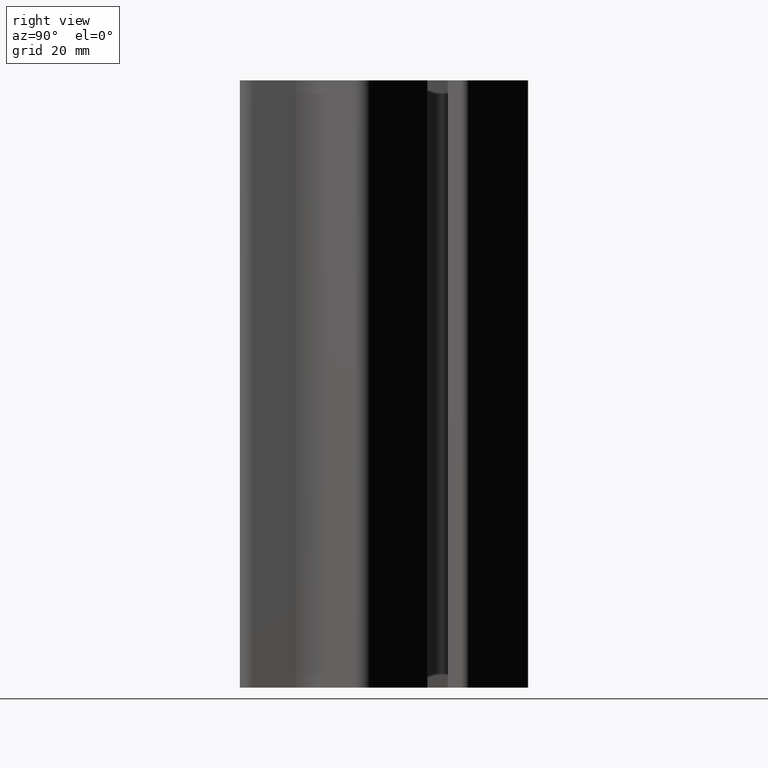
[diagram: clean part render]
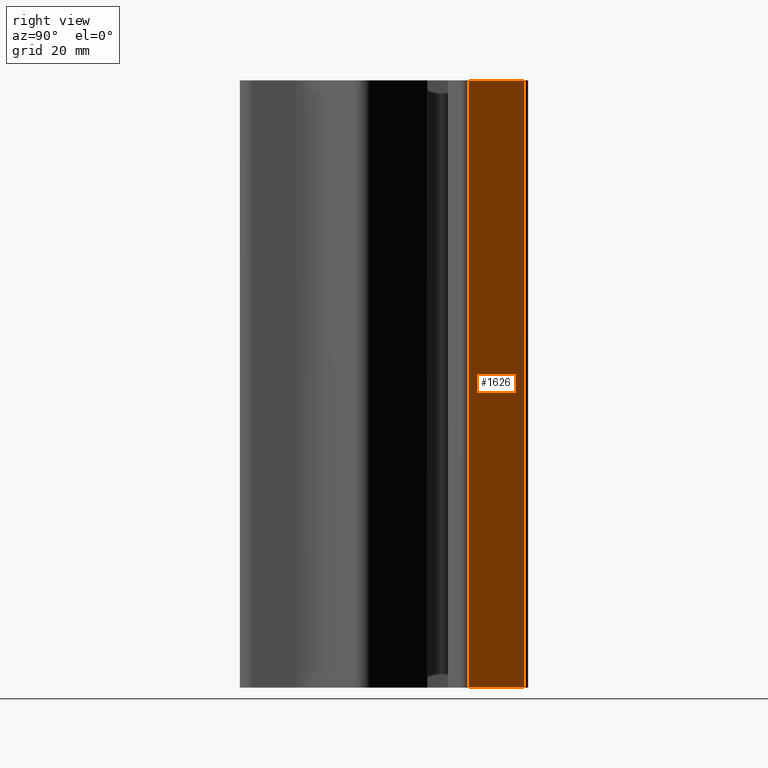
[diagram: same view with one face highlighted and labeled with its STEP entity id]
A machine part, right view. The second image highlights one B-rep face of the part: STEP entity #1626.
In plain terms, the highlighted planar face has unit normal (0.7071, 0.7071, 0).
Its self-contained STEP definition (entity closure, byte-faithful):
#148=FACE_OUTER_BOUND('',#234,.T.);
#234=EDGE_LOOP('',(#1080,#1081,#1082,#1083));
#327=LINE('',#2397,#494);
#328=LINE('',#2399,#495);
#329=LINE('',#2401,#496);
#330=LINE('',#2402,#497);
#494=VECTOR('',#1888,12.9962386445794);
#495=VECTOR('',#1889,100.);
#496=VECTOR('',#1890,12.9962386445794);
#497=VECTOR('',#1891,100.);
#661=VERTEX_POINT('',#2395);
#662=VERTEX_POINT('',#2396);
#663=VERTEX_POINT('',#2398);
#664=VERTEX_POINT('',#2400);
#829=EDGE_CURVE('',#661,#662,#327,.T.);
#830=EDGE_CURVE('',#662,#663,#328,.T.);
#831=EDGE_CURVE('',#664,#663,#329,.T.);
#832=EDGE_CURVE('',#661,#664,#330,.T.);
#1080=ORIENTED_EDGE('',*,*,#829,.T.);
#1081=ORIENTED_EDGE('',*,*,#830,.T.);
#1082=ORIENTED_EDGE('',*,*,#831,.F.);
#1083=ORIENTED_EDGE('',*,*,#832,.F.);
#1582=PLANE('',#1714);
#1626=ADVANCED_FACE('',(#148),#1582,.T.);
#1714=AXIS2_PLACEMENT_3D('',#2394,#1886,#1887);
#1886=DIRECTION('center_axis',(0.707106487640014,0.707107074732959,0.));
#1887=DIRECTION('ref_axis',(0.,0.,-1.));
#1888=DIRECTION('',(-0.70710707473296,0.707106487640014,0.));
#1889=DIRECTION('',(0.,0.,1.));
#1890=DIRECTION('',(-0.70710707473296,0.707106487640014,0.));
#1891=DIRECTION('',(0.,0.,1.));
#2394=CARTESIAN_POINT('Origin',(60.6111645277481,17.6791095617325,0.));
#2395=CARTESIAN_POINT('',(60.6111645277481,17.6791095617325,0.));
#2396=CARTESIAN_POINT('',(51.4214322372481,26.8688342222325,0.));
#2397=CARTESIAN_POINT('',(60.6111645277481,17.6791095617325,0.));
#2398=CARTESIAN_POINT('',(51.4214322372481,26.8688342222325,100.));
#2399=CARTESIAN_POINT('',(51.4214322372481,26.8688342222325,0.));
#2400=CARTESIAN_POINT('',(60.6111645277481,17.6791095617325,100.));
#2401=CARTESIAN_POINT('',(60.6111645277481,17.6791095617325,100.));
#2402=CARTESIAN_POINT('',(60.6111645277481,17.6791095617325,0.));